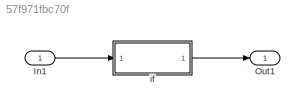
MODEL slx_57f971fbc70f
KIND model
CONFIG AbsTol = auto
CONFIG EnableMultiTasking = off
CONFIG FixedStep = auto
CONFIG MaxStep = auto
CONFIG MinStep = auto
CONFIG RelTol = 1e-3
CONFIG SampleTimeConstraint = Unconstrained
CONFIG Solver = FixedStepDiscrete
CONFIG SolverName = FixedStepDiscrete
CONFIG StartTime = 0.0
CONFIG StopTime = 10.0
WORKSPACE source: MAT-file member
WORKSPACE X_structure: struct (value not decoded)
BLOCK [Inport] In1
  IconDisplay = Port number
BLOCK [Outport] Out1
  IconDisplay = Port number
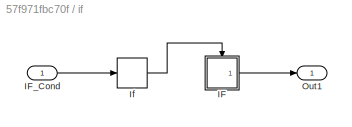
BLOCK [SubSystem] if
  AncestorBlock = Block_TestLib/if
  Ports = [1, 1]
  RequestExecContextInheritance = off
  Variant = off
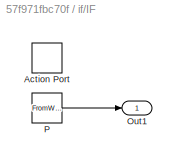
BLOCK [SubSystem] if/IF
  Ports = [0, 1, 0, 0, 0, 0, 0, 1]
  RequestExecContextInheritance = off
  TreatAsAtomicUnit = on
  Variant = off
BLOCK [ActionPort] if/IF/Action Port
  ActionType = then
BLOCK [Outport] if/IF/Out1
  IconDisplay = Port number
BLOCK [FromWorkspace] if/IF/P
  Interpolate = off
  OutputAfterFinalValue = Holding final value
  VariableName = X_structure
  ZeroCross = on
BLOCK [Inport] if/IF_Cond
  IconDisplay = Port number
  OutDataTypeStr = boolean
BLOCK [If] if/If
  IfExpression = u1
  Ports = [1, 1]
  ShowElse = off
BLOCK [Outport] if/Out1
  IconDisplay = Port number
LINE In1:1 -> if:1
LINE if:1 -> Out1:1
